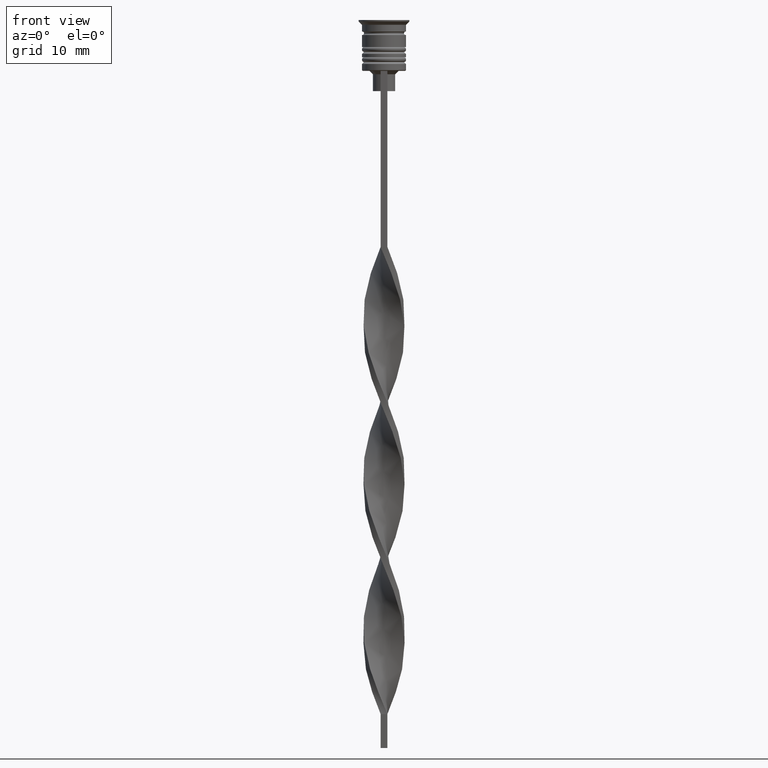
[diagram: clean part render]
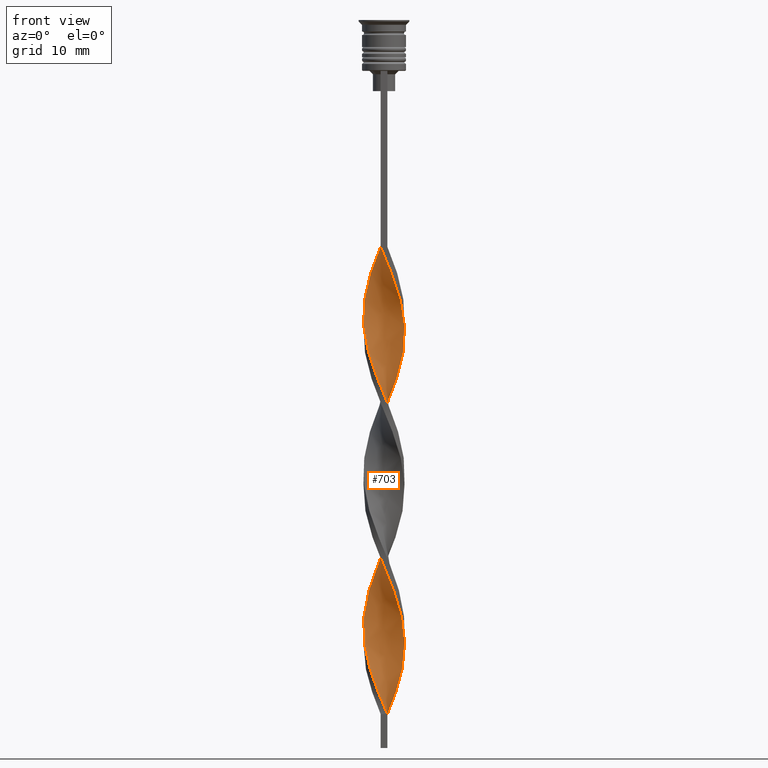
[diagram: same view with one face highlighted and labeled with its STEP entity id]
A machine part, front view. The second image highlights one B-rep face of the part: STEP entity #703.
In plain terms, the highlighted face is a freeform B-spline surface patch.
Its self-contained STEP definition (entity closure, byte-faithful):
#6 = CARTESIAN_POINT ( 'NONE',  ( 0.9514415033047003423, -2.888729662981513790, -37.03846153846154010 ) ) ;
#13 = CARTESIAN_POINT ( 'NONE',  ( -2.982351171577512616, -0.5963065397848993365, -70.65384615384616041 ) ) ;
#31 =( BOUNDED_CURVE ( )  B_SPLINE_CURVE ( 2, ( #1935, #630, #2942, #2707, #865, #1915, #344, #74, #1383, #2208, #2927, #1413, #2173, #594, #1109, #1659, #917, #362, #95, #327, #2979, #2692, #2458, #2995, #2404, #1398, #144, #2155, #3193, #3231, #1128, #3176, #1625, #2442, #110, #125, #1951, #1161, #901, #2723, #1691, #393, #1430, #2223, #3246, #1967, #2285, #1756, #1984, #2300, #978, #2539, #3278, #3307, #2271, #3322, #681, #2806, #2253, #475, #1517, #219, #2553, #2029, #1742, #1729, #3012, #965, #931, #2522, #412, #1195, #171, #205, #998, #2016, #1256, #1241, #951 ),
 .UNSPECIFIED., .F., .T. ) 
 B_SPLINE_CURVE_WITH_KNOTS ( ( 3, 2, 2, 2, 2, 2, 2, 2, 2, 2, 2, 2, 2, 2, 2, 2, 2, 2, 2, 2, 2, 2, 2, 2, 2, 2, 2, 2, 2, 2, 2, 2, 2, 2, 2, 2, 2, 2, 2, 3 ),
 ( 0.000000000000000000, 0.01923076923076923184, 0.03846153846153846367, 0.05769230769230768857, 0.07692307692307692735, 0.09615384615384615918, 0.1153846153846153771, 0.1346153846153846090, 0.1538461538461538547, 0.1730769230769230449, 0.1923076923076923184, 0.2115384615384615363, 0.2307692307692307543, 0.2500000000000000000, 0.2692307692307692180, 0.2884615384615384359, 0.3076923076923077094, 0.3269230769230769273, 0.3461538461538460898, 0.3653846153846153633, 0.3846153846153846367, 0.4038461538461539102, 0.4230769230769230727, 0.4423076923076922906, 0.4615384615384615086, 0.4807692307692307820, 0.5000000000000000000, 0.5192307692307692735, 0.5384615384615384359, 0.5576923076923077094, 0.5769230769230768718, 0.5961538461538461453, 0.6153846153846154188, 0.6346153846153845812, 0.6538461538461538547, 0.6730769230769230171, 0.6923076923076921796, 0.7115384615384615641, 0.7307692307692307265, 0.7500000000000000000 ),
 .UNSPECIFIED. ) 
 CURVE ( )  GEOMETRIC_REPRESENTATION_ITEM ( )  RATIONAL_B_SPLINE_CURVE ( ( 1.000000000000000000, 0.9927088740980539727, 1.000000000000000000, 0.9927088740980539727, 1.000000000000000000, 0.9927088740980539727, 1.000000000000000000, 0.9927088740980539727, 1.000000000000000000, 0.9927088740980539727, 1.000000000000000000, 0.9927088740980539727, 1.000000000000000000, 0.9927088740980539727, 1.000000000000000000, 0.9927088740980539727, 1.000000000000000000, 0.9927088740980539727, 1.000000000000000000, 0.9927088740980539727, 1.000000000000000000, 0.9927088740980539727, 1.000000000000000000, 0.9927088740980539727, 1.000000000000000000, 0.9927088740980539727, 1.000000000000000000, 0.9927088740980539727, 1.000000000000000000, 0.9927088740980539727, 1.000000000000000000, 0.9927088740980539727, 1.000000000000000000, 0.9927088740980539727, 1.000000000000000000, 0.9927088740980539727, 1.000000000000000000, 0.9927088740980539727, 1.000000000000000000, 0.9927088740980539727, 1.000000000000000000, 0.9927088740980539727, 1.000000000000000000, 0.9927088740980539727, 1.000000000000000000, 0.9927088740980539727, 1.000000000000000000, 0.9927088740980539727, 1.000000000000000000, 0.9927088740980539727, 1.000000000000000000, 0.9927088740980539727, 1.000000000000000000, 0.9927088740980539727, 1.000000000000000000, 0.9927088740980539727, 1.000000000000000000, 0.9927088740980539727, 1.000000000000000000, 0.9927088740980539727, 1.000000000000000000, 0.9927088740980539727, 1.000000000000000000, 0.9927088740980539727, 1.000000000000000000, 0.9927088740980539727, 1.000000000000000000, 0.9927088740980539727, 1.000000000000000000, 0.9927088740980539727, 1.000000000000000000, 0.9927088740980539727, 1.000000000000000000, 0.9927088740980539727, 1.000000000000000000, 0.9927088740980539727, 1.000000000000000000, 0.9927088740980539727, 1.000000000000000000 ) ) 
 REPRESENTATION_ITEM ( '' )  );
#35 = CARTESIAN_POINT ( 'NONE',  ( -2.131225204431204112, 2.200966749995606264, -37.92307692307692690 ) ) ;
#50 =( BOUNDED_CURVE ( )  B_SPLINE_CURVE ( 2, ( #2878, #80, #1563, #62, #6, #2070, #547, #2139, #2862, #787, #2663, #837, #2613, #1078, #1061, #2895, #765, #2844, #3129, #581, #264, #1594, #3146, #2087, #531, #1628, #1367, #3111, #1037, #516, #2647, #315, #2409, #2108, #1835, #278, #802, #1114, #1435, #2726, #2212, #868, #2998, #1681, #665, #2749, #3250, #2679, #1715, #1918, #2946, #1387, #1165, #1645, #1416, #3213, #634, #3196, #2161, #1970, #397, #2432, #2966, #854, #349, #614, #648, #1694, #148, #99, #416, #2480, #1182, #2983, #905, #1456, #1664, #3234, #2696 ),
 .UNSPECIFIED., .F., .T. ) 
 B_SPLINE_CURVE_WITH_KNOTS ( ( 3, 2, 2, 2, 2, 2, 2, 2, 2, 2, 2, 2, 2, 2, 2, 2, 2, 2, 2, 2, 2, 2, 2, 2, 2, 2, 2, 2, 2, 2, 2, 2, 2, 2, 2, 2, 2, 2, 2, 3 ),
 ( 0.000000000000000000, 0.01923076923076923184, 0.03846153846153846367, 0.05769230769230768857, 0.07692307692307692735, 0.09615384615384615918, 0.1153846153846153771, 0.1346153846153846090, 0.1538461538461538547, 0.1730769230769230449, 0.1923076923076923184, 0.2115384615384615363, 0.2307692307692307543, 0.2500000000000000000, 0.2692307692307692180, 0.2884615384615384359, 0.3076923076923077094, 0.3269230769230769273, 0.3461538461538460898, 0.3653846153846153633, 0.3846153846153846367, 0.4038461538461539102, 0.4230769230769230727, 0.4423076923076922906, 0.4615384615384615086, 0.4807692307692307820, 0.5000000000000000000, 0.5192307692307692735, 0.5384615384615384359, 0.5576923076923077094, 0.5769230769230768718, 0.5961538461538461453, 0.6153846153846154188, 0.6346153846153845812, 0.6538461538461538547, 0.6730769230769230171, 0.6923076923076921796, 0.7115384615384615641, 0.7307692307692307265, 0.7500000000000000000 ),
 .UNSPECIFIED. ) 
 CURVE ( )  GEOMETRIC_REPRESENTATION_ITEM ( )  RATIONAL_B_SPLINE_CURVE ( ( 1.000000000000000000, 0.9927088740980539727, 1.000000000000000000, 0.9927088740980539727, 1.000000000000000000, 0.9927088740980539727, 1.000000000000000000, 0.9927088740980539727, 1.000000000000000000, 0.9927088740980539727, 1.000000000000000000, 0.9927088740980539727, 1.000000000000000000, 0.9927088740980539727, 1.000000000000000000, 0.9927088740980539727, 1.000000000000000000, 0.9927088740980539727, 1.000000000000000000, 0.9927088740980539727, 1.000000000000000000, 0.9927088740980539727, 1.000000000000000000, 0.9927088740980539727, 1.000000000000000000, 0.9927088740980539727, 1.000000000000000000, 0.9927088740980539727, 1.000000000000000000, 0.9927088740980539727, 1.000000000000000000, 0.9927088740980539727, 1.000000000000000000, 0.9927088740980539727, 1.000000000000000000, 0.9927088740980539727, 1.000000000000000000, 0.9927088740980539727, 1.000000000000000000, 0.9927088740980539727, 1.000000000000000000, 0.9927088740980539727, 1.000000000000000000, 0.9927088740980539727, 1.000000000000000000, 0.9927088740980539727, 1.000000000000000000, 0.9927088740980539727, 1.000000000000000000, 0.9927088740980539727, 1.000000000000000000, 0.9927088740980539727, 1.000000000000000000, 0.9927088740980539727, 1.000000000000000000, 0.9927088740980539727, 1.000000000000000000, 0.9927088740980539727, 1.000000000000000000, 0.9927088740980539727, 1.000000000000000000, 0.9927088740980539727, 1.000000000000000000, 0.9927088740980539727, 1.000000000000000000, 0.9927088740980539727, 1.000000000000000000, 0.9927088740980539727, 1.000000000000000000, 0.9927088740980539727, 1.000000000000000000, 0.9927088740980539727, 1.000000000000000000, 0.9927088740980539727, 1.000000000000000000, 0.9927088740980539727, 1.000000000000000000, 0.9927088740980539727, 1.000000000000000000 ) ) 
 REPRESENTATION_ITEM ( '' )  );
#51 = CARTESIAN_POINT ( 'NONE',  ( 0.9514415033047027848, 2.888729662981513346, -75.96153846153846700 ) ) ;
#58 = DIRECTION ( 'NONE',  ( 0.000000000000000000, 1.000000000000000000, 0.000000000000000000 ) ) ;
#62 = CARTESIAN_POINT ( 'NONE',  ( 0.6006862186325125919, -3.004255577232739949, -36.15384615384615330 ) ) ;
#74 = CARTESIAN_POINT ( 'NONE',  ( -2.596021493184668572, 1.626975080790205697, -39.69230769230769340 ) ) ;
#80 = CARTESIAN_POINT ( 'NONE',  ( -0.1357340503332185033, -3.060710991611130360, -34.38461538461538680 ) ) ;
#95 = CARTESIAN_POINT ( 'NONE',  ( -2.184919224315391428, -2.115686173140295168, -49.42307692307693401 ) ) ;
#99 = CARTESIAN_POINT ( 'NONE',  ( 2.909946448908426131, 0.9584295337030729334, -94.53846153846154721 ) ) ;
#110 = CARTESIAN_POINT ( 'NONE',  ( 2.752983971046547129, -1.292702307246639482, -63.57692307692308731 ) ) ;
#118 = CARTESIAN_POINT ( 'NONE',  ( -0.5000000000000001110, 3.000000000000000000, -79.50000000000001421 ) ) ;
#125 = CARTESIAN_POINT ( 'NONE',  ( 2.909946448908425243, -0.9584295337030751538, -64.46153846153845279 ) ) ;
#126 = ORIENTED_EDGE ( 'NONE', *, *, #1953, .F. ) ;
#133 = CARTESIAN_POINT ( 'NONE',  ( 2.596021493184667683, -1.626975080790206141, -62.69230769230770051 ) ) ;
#144 = CARTESIAN_POINT ( 'NONE',  ( 0.4999999999999997780, -3.000000000000000000, -56.50000000000000711 ) ) ;
#148 = CARTESIAN_POINT ( 'NONE',  ( 2.982351171577512616, 0.5963065397848988924, -93.65384615384617462 ) ) ;
#151 = CARTESIAN_POINT ( 'NONE',  ( -2.184919224315391428, -2.115686173140295168, -95.42307692307693401 ) ) ;
#165 = CARTESIAN_POINT ( 'NONE',  ( -1.302196787976888537, -2.773203748730288076, -52.07692307692308020 ) ) ;
#169 = FACE_OUTER_BOUND ( 'NONE', #3114, .T. ) ;
#171 = CARTESIAN_POINT ( 'NONE',  ( -1.615112600636835705, -2.577093573633700174, -97.19230769230770761 ) ) ;
#198 = CARTESIAN_POINT ( 'NONE',  ( 0.4999999999999997780, -3.000000000000000000, -102.5000000000000142 ) ) ;
#205 = CARTESIAN_POINT ( 'NONE',  ( -1.302196787976888537, -2.773203748730288076, -98.07692307692309441 ) ) ;
#217 = CARTESIAN_POINT ( 'NONE',  ( -1.615112600636834150, 2.577093573633701062, -61.80769230769231370 ) ) ;
#219 = CARTESIAN_POINT ( 'NONE',  ( -2.909946448908426131, 0.9584295337030733775, -87.46153846153849543 ) ) ;
#233 = CARTESIAN_POINT ( 'NONE',  ( 0.9514415033047003423, -2.888729662981513790, -83.03846153846154721 ) ) ;
#239 = VERTEX_POINT ( 'NONE', #3068 ) ;
#252 = CARTESIAN_POINT ( 'NONE',  ( 0.1357340503332191695, 3.060710991611130360, -57.38461538461538680 ) ) ;
#264 = CARTESIAN_POINT ( 'NONE',  ( 2.363623348807936786, 1.913970915392904759, -51.19230769230769340 ) ) ;
#268 = CARTESIAN_POINT ( 'NONE',  ( 2.441810035334000428, -1.850388947743477841, -87.46153846153849543 ) ) ;
#278 = CARTESIAN_POINT ( 'NONE',  ( -2.441810035333999540, 1.850388947743479395, -64.46153846153845279 ) ) ;
#285 = CARTESIAN_POINT ( 'NONE',  ( 2.131225204431204556, 2.200966749995605820, -98.07692307692308020 ) ) ;
#306 = CARTESIAN_POINT ( 'NONE',  ( 1.615112600636836149, 2.577093573633699730, -74.19230769230769340 ) ) ;
#315 = CARTESIAN_POINT ( 'NONE',  ( -1.302196787976887871, 2.773203748730288964, -60.92307692307692690 ) ) ;
#327 = CARTESIAN_POINT ( 'NONE',  ( -1.928028413296782206, -2.380983398537113160, -50.30769230769231370 ) ) ;
#344 = CARTESIAN_POINT ( 'NONE',  ( -2.363623348807935898, 1.913970915392905869, -38.80769230769230660 ) ) ;
#349 = CARTESIAN_POINT ( 'NONE',  ( 2.917858282166500228, -0.8579644778149968509, -90.11538461538462741 ) ) ;
#362 = CARTESIAN_POINT ( 'NONE',  ( -2.441810035334000428, -1.850388947743477619, -48.53846153846154721 ) ) ;
#371 = CARTESIAN_POINT ( 'NONE',  ( -2.184919224315391428, -2.115686173140295168, -49.42307692307693401 ) ) ;
#384 = ORIENTED_EDGE ( 'NONE', *, *, #1192, .T. ) ;
#386 = CARTESIAN_POINT ( 'NONE',  ( 0.2324760841496499864, 3.032483284421934489, -77.73076923076924061 ) ) ;
#393 = CARTESIAN_POINT ( 'NONE',  ( 2.813682533735953673, 1.212256617197149833, -69.76923076923077360 ) ) ;
#397 = CARTESIAN_POINT ( 'NONE',  ( 2.184919224315390984, -2.115686173140296056, -86.57692307692308020 ) ) ;
#401 = CARTESIAN_POINT ( 'NONE',  ( -1.836897528957910586, 2.424006490937745451, -83.03846153846154721 ) ) ;
#412 = CARTESIAN_POINT ( 'NONE',  ( -2.184919224315391428, -2.115686173140295168, -95.42307692307693401 ) ) ;
#416 = CARTESIAN_POINT ( 'NONE',  ( 2.752983971046547573, 1.292702307246638815, -95.42307692307693401 ) ) ;
#417 = ORIENTED_EDGE ( 'NONE', *, *, #2009, .T. ) ;
#419 = CARTESIAN_POINT ( 'NONE',  ( 1.928028413296783983, 2.380983398537111828, -73.30769230769232081 ) ) ;
#446 = VERTEX_POINT ( 'NONE', #1547 ) ;
#475 = CARTESIAN_POINT ( 'NONE',  ( -2.596021493184668572, 1.626975080790205697, -85.69230769230770761 ) ) ;
#486 = CARTESIAN_POINT ( 'NONE',  ( 2.813682533735953228, -1.212256617197151165, -89.23076923076922640 ) ) ;
#503 = CARTESIAN_POINT ( 'NONE',  ( 1.203417901575700499, 2.793167620134376694, -54.73076923076923350 ) ) ;
#516 = CARTESIAN_POINT ( 'NONE',  ( -0.6006862186325113706, 3.004255577232740393, -59.15384615384616041 ) ) ;
#520 = CARTESIAN_POINT ( 'NONE',  ( -1.542569853484617060, 2.647046231879885081, -36.15384615384615330 ) ) ;
#531 = CARTESIAN_POINT ( 'NONE',  ( 1.203417901575700499, 2.793167620134376694, -54.73076923076923350 ) ) ;
#536 = CARTESIAN_POINT ( 'NONE',  ( -2.813682533735953228, 1.212256617197151165, -66.23076923076922640 ) ) ;
#547 = CARTESIAN_POINT ( 'NONE',  ( 1.615112600636834594, -2.577093573633701062, -38.80769230769230660 ) ) ;
#553 = CARTESIAN_POINT ( 'NONE',  ( -2.627746284534977050, -1.531322782470313948, -93.65384615384617462 ) ) ;
#581 = CARTESIAN_POINT ( 'NONE',  ( 2.596021493184669016, 1.626975080790204364, -50.30769230769231370 ) ) ;
#594 = CARTESIAN_POINT ( 'NONE',  ( -3.022034030597048559, -0.5036723384328413156, -45.00000000000000711 ) ) ;
#614 = CARTESIAN_POINT ( 'NONE',  ( 3.022034030597048559, -0.5036723384328417596, -91.00000000000001421 ) ) ;
#621 = CARTESIAN_POINT ( 'NONE',  ( -2.131225204431204112, 2.200966749995606264, -83.92307692307691980 ) ) ;
#630 = CARTESIAN_POINT ( 'NONE',  ( -0.8642659496667818297, 2.939289008388869640, -34.38461538461538680 ) ) ;
#634 = CARTESIAN_POINT ( 'NONE',  ( 0.9514415033047003423, -2.888729662981513790, -83.03846153846154721 ) ) ;
#639 = CARTESIAN_POINT ( 'NONE',  ( 2.813682533735953673, 1.212256617197149833, -69.76923076923077360 ) ) ;
#648 = CARTESIAN_POINT ( 'NONE',  ( 3.038394962421823386, -0.1347443962830584541, -91.88461538461540101 ) ) ;
#654 = CARTESIAN_POINT ( 'NONE',  ( 1.542569853484615949, -2.647046231879885525, -59.15384615384616041 ) ) ;
#659 = CARTESIAN_POINT ( 'NONE',  ( 2.627746284534976606, -1.531322782470315058, -42.34615384615385381 ) ) ;
#665 = CARTESIAN_POINT ( 'NONE',  ( -2.752983971046547573, -1.292702307246638149, -72.42307692307691980 ) ) ;
#670 = CARTESIAN_POINT ( 'NONE',  ( -2.909946448908425687, 0.9584295337030733775, -87.46153846153849543 ) ) ;
#681 = CARTESIAN_POINT ( 'NONE',  ( -1.836897528957910586, 2.424006490937745451, -83.03846153846154721 ) ) ;
#703 = ADVANCED_FACE ( 'NONE', ( #169 ), #1185, .T. ) ;
#710 = VERTEX_POINT ( 'NONE', #1284 ) ;
#736 = B_SPLINE_CURVE_WITH_KNOTS ( 'NONE', 3,
 ( #1127, #1846, #3125, #3156 ),
 .UNSPECIFIED., .F., .F.,
 ( 4, 4 ),
 ( 0.000000000000000000, 1.000000000000000000 ),
 .UNSPECIFIED. ) ;
#740 = CARTESIAN_POINT ( 'NONE',  ( 2.917858282166500228, -0.8579644778149968509, -90.11538461538462741 ) ) ;
#751 = CARTESIAN_POINT ( 'NONE',  ( -1.302196787976888537, -2.773203748730288076, -98.07692307692308020 ) ) ;
#756 = CARTESIAN_POINT ( 'NONE',  ( -1.203417901575701832, -2.793167620134376250, -77.73076923076924061 ) ) ;
#765 = CARTESIAN_POINT ( 'NONE',  ( 2.982351171577512616, 0.5963065397848988924, -47.65384615384616041 ) ) ;
#774 = CARTESIAN_POINT ( 'NONE',  ( -0.1357340503332185311, -3.060710991611130360, -80.38461538461538680 ) ) ;
#787 = CARTESIAN_POINT ( 'NONE',  ( 2.441810035334000428, -1.850388947743478063, -41.46153846153846700 ) ) ;
#792 = CARTESIAN_POINT ( 'NONE',  ( -2.131225204431204556, -2.200966749995605820, -75.07692307692308020 ) ) ;
#802 = CARTESIAN_POINT ( 'NONE',  ( -2.627746284534976162, 1.531322782470315280, -65.34615384615385381 ) ) ;
#808 = CARTESIAN_POINT ( 'NONE',  ( -3.022034030597048559, 0.5036723384328420927, -68.00000000000000000 ) ) ;
#837 = CARTESIAN_POINT ( 'NONE',  ( 2.813682533735953228, -1.212256617197151165, -43.23076923076923350 ) ) ;
#854 = CARTESIAN_POINT ( 'NONE',  ( 2.813682533735953228, -1.212256617197151165, -89.23076923076924061 ) ) ;
#865 = CARTESIAN_POINT ( 'NONE',  ( -1.836897528957910586, 2.424006490937745451, -37.03846153846154010 ) ) ;
#868 = CARTESIAN_POINT ( 'NONE',  ( -3.054755894246599102, -0.2341835458667243242, -69.76923076923077360 ) ) ;
#872 = CARTESIAN_POINT ( 'NONE',  ( -2.441810035334000428, -1.850388947743477397, -48.53846153846154010 ) ) ;
#892 = CARTESIAN_POINT ( 'NONE',  ( -2.909946448908425687, 0.9584295337030733775, -41.46153846153846700 ) ) ;
#901 = CARTESIAN_POINT ( 'NONE',  ( 3.038394962421823831, 0.1347443962830564002, -67.11538461538461320 ) ) ;
#905 = CARTESIAN_POINT ( 'NONE',  ( 1.836897528957911030, 2.424006490937744562, -98.96153846153848122 ) ) ;
#909 = CARTESIAN_POINT ( 'NONE',  ( 2.131225204431203668, -2.200966749995606708, -60.92307692307691980 ) ) ;
#915 = CARTESIAN_POINT ( 'NONE',  ( 1.928028413296781762, -2.380983398537113604, -39.69230769230769340 ) ) ;
#917 = CARTESIAN_POINT ( 'NONE',  ( -2.627746284534977050, -1.531322782470313948, -47.65384615384616041 ) ) ;
#919 = EDGE_CURVE ( 'NONE', #2770, #446, #50, .T. ) ;
#925 = CARTESIAN_POINT ( 'NONE',  ( 3.054755894246598658, -0.2341835458667256287, -66.23076923076922640 ) ) ;
#931 = CARTESIAN_POINT ( 'NONE',  ( -2.627746284534977050, -1.531322782470313948, -93.65384615384617462 ) ) ;
#941 = CARTESIAN_POINT ( 'NONE',  ( -2.982351171577512172, 0.5963065397848998916, -88.34615384615385381 ) ) ;
#951 = CARTESIAN_POINT ( 'NONE',  ( 0.4999999999999997780, -3.000000000000000000, -102.5000000000000142 ) ) ;
#958 = CARTESIAN_POINT ( 'NONE',  ( -1.615112600636835705, -2.577093573633700174, -97.19230769230770761 ) ) ;
#965 = CARTESIAN_POINT ( 'NONE',  ( -2.813682533735953228, -1.212256617197150943, -92.76923076923077360 ) ) ;
#978 = CARTESIAN_POINT ( 'NONE',  ( 0.2324760841496499864, 3.032483284421934489, -77.73076923076924061 ) ) ;
#995 = CARTESIAN_POINT ( 'NONE',  ( -0.9514415033047003423, 2.888729662981513790, -60.03846153846154010 ) ) ;
#998 = CARTESIAN_POINT ( 'NONE',  ( -0.9514415033047011194, -2.888729662981513790, -98.96153846153848122 ) ) ;
#1011 = CARTESIAN_POINT ( 'NONE',  ( -0.2324760841496461561, 3.032483284421934933, -58.26923076923077360 ) ) ;
#1027 = CARTESIAN_POINT ( 'NONE',  ( 2.596021493184669016, 1.626975080790204142, -96.30769230769232081 ) ) ;
#1037 = CARTESIAN_POINT ( 'NONE',  ( -0.2324760841496461561, 3.032483284421934933, -58.26923076923077360 ) ) ;
#1047 = CARTESIAN_POINT ( 'NONE',  ( -2.441810035333999540, 1.850388947743479173, -64.46153846153845279 ) ) ;
#1061 = CARTESIAN_POINT ( 'NONE',  ( 3.038394962421823386, -0.1347443962830584541, -45.88461538461538680 ) ) ;
#1068 = CARTESIAN_POINT ( 'NONE',  ( 1.542569853484618170, 2.647046231879884193, -99.84615384615385381 ) ) ;
#1078 = CARTESIAN_POINT ( 'NONE',  ( 3.022034030597048559, -0.5036723384328417596, -45.00000000000000711 ) ) ;
#1107 = CARTESIAN_POINT ( 'NONE',  ( -0.5000000000000001110, -3.000000000000000000, -33.50000000000000000 ) ) ;
#1109 = CARTESIAN_POINT ( 'NONE',  ( -2.917858282166500672, -0.8579644778149958517, -45.88461538461538680 ) ) ;
#1114 = CARTESIAN_POINT ( 'NONE',  ( -2.813682533735953228, 1.212256617197151165, -66.23076923076922640 ) ) ;
#1127 = CARTESIAN_POINT ( 'NONE',  ( 0.5000000000000004441, 3.000000000000000000, -102.5000000000000142 ) ) ;
#1128 = CARTESIAN_POINT ( 'NONE',  ( 1.836897528957910586, -2.424006490937745451, -60.03846153846154010 ) ) ;
#1137 = CARTESIAN_POINT ( 'NONE',  ( 1.836897528957910586, -2.424006490937745451, -60.03846153846154010 ) ) ;
#1153 = CARTESIAN_POINT ( 'NONE',  ( -2.813682533735953228, -1.212256617197150943, -92.76923076923075939 ) ) ;
#1161 = CARTESIAN_POINT ( 'NONE',  ( 3.054755894246598658, -0.2341835458667256287, -66.23076923076922640 ) ) ;
#1165 = CARTESIAN_POINT ( 'NONE',  ( -0.5000000000000001110, -3.000000000000000000, -79.50000000000001421 ) ) ;
#1170 = CARTESIAN_POINT ( 'NONE',  ( -1.615112600636835705, -2.577093573633700174, -51.19230769230769340 ) ) ;
#1182 = CARTESIAN_POINT ( 'NONE',  ( 2.363623348807936786, 1.913970915392904759, -97.19230769230770761 ) ) ;
#1185 =( BOUNDED_SURFACE ( )  B_SPLINE_SURFACE ( 1, 2, ( 
 ( #2027, #2804, #1478, #3052, #2221, #2759, #2742, #915, #3258, #1965, #659, #1193, #2235, #3009, #1464, #1206, #2504, #2251, #3275, #1999, #3024, #1740, #2772, #1855, #503, #2883, #1254, #252, #1011, #3338, #995, #3320, #217, #1515, #2585, #1047, #2097, #536, #2045, #808, #1840, #2868, #13, #1304, #3134, #2060, #3120, #792, #3099, #2298, #756, #2368, #2832, #774, #1803, #1549, #233, #3069, #2565, #1583, #2816, #268, #3083, #486, #740, #1288, #2551, #2331, #3354, #1788, #2618, #1027, #1530, #285, #2075, #1068, #1567, #1271, #1324 ),
 ( #2318, #1823, #2852, #520, #2601, #35, #2346, #2113, #1721, #892, #3254, #2733, #2972, #1944, #1343, #2231, #1187, #872, #371, #2499, #1170, #165, #2245, #2753, #2181, #1202, #1407, #2451, #1923, #654, #1137, #909, #2717, #133, #2701, #1603, #1459, #925, #2951, #1700, #3003, #639, #1685, #1975, #2466, #419, #306, #2385, #51, #3202, #386, #1421, #118, #3219, #3268, #2217, #401, #621, #3239, #1670, #1960, #670, #941, #2988, #1441, #2485, #1993, #1153, #553, #2638, #151, #2196, #958, #751, #2559, #2278, #1491, #2056, #198 ) ),
 .UNSPECIFIED., .F., .F., .F. ) 
 B_SPLINE_SURFACE_WITH_KNOTS ( ( 2, 2 ),
 ( 3, 2, 2, 2, 2, 2, 2, 2, 2, 2, 2, 2, 2, 2, 2, 2, 2, 2, 2, 2, 2, 2, 2, 2, 2, 2, 2, 2, 2, 2, 2, 2, 2, 2, 2, 2, 2, 2, 2, 3 ),
 ( 0.000000000000000000, 1.000000000000000000 ),
 ( 0.000000000000000000, 0.01923076923076923184, 0.03846153846153846367, 0.05769230769230769551, 0.07692307692307692735, 0.09615384615384615918, 0.1153846153846153910, 0.1346153846153846090, 0.1538461538461538547, 0.1730769230769230727, 0.1923076923076923184, 0.2115384615384615363, 0.2307692307692307820, 0.2500000000000000000, 0.2692307692307692180, 0.2884615384615384359, 0.3076923076923077094, 0.3269230769230769273, 0.3461538461538461453, 0.3653846153846153633, 0.3846153846153846367, 0.4038461538461538547, 0.4230769230769230727, 0.4423076923076922906, 0.4615384615384615641, 0.4807692307692307820, 0.5000000000000000000, 0.5192307692307692735, 0.5384615384615384359, 0.5576923076923077094, 0.5769230769230768718, 0.5961538461538461453, 0.6153846153846154188, 0.6346153846153845812, 0.6538461538461538547, 0.6730769230769231282, 0.6923076923076922906, 0.7115384615384615641, 0.7307692307692307265, 0.7500000000000000000 ),
 .UNSPECIFIED. ) 
 GEOMETRIC_REPRESENTATION_ITEM ( )  RATIONAL_B_SPLINE_SURFACE ( (
 ( 1.000000000000000000, 0.9927088740980539727, 1.000000000000000000, 0.9927088740980539727, 1.000000000000000000, 0.9927088740980539727, 1.000000000000000000, 0.9927088740980539727, 1.000000000000000000, 0.9927088740980539727, 1.000000000000000000, 0.9927088740980539727, 1.000000000000000000, 0.9927088740980539727, 1.000000000000000000, 0.9927088740980539727, 1.000000000000000000, 0.9927088740980539727, 1.000000000000000000, 0.9927088740980539727, 1.000000000000000000, 0.9927088740980539727, 1.000000000000000000, 0.9927088740980539727, 1.000000000000000000, 0.9927088740980539727, 1.000000000000000000, 0.9927088740980539727, 1.000000000000000000, 0.9927088740980539727, 1.000000000000000000, 0.9927088740980539727, 1.000000000000000000, 0.9927088740980539727, 1.000000000000000000, 0.9927088740980539727, 1.000000000000000000, 0.9927088740980539727, 1.000000000000000000, 0.9927088740980539727, 1.000000000000000000, 0.9927088740980539727, 1.000000000000000000, 0.9927088740980539727, 1.000000000000000000, 0.9927088740980539727, 1.000000000000000000, 0.9927088740980539727, 1.000000000000000000, 0.9927088740980539727, 1.000000000000000000, 0.9927088740980539727, 1.000000000000000000, 0.9927088740980539727, 1.000000000000000000, 0.9927088740980539727, 1.000000000000000000, 0.9927088740980539727, 1.000000000000000000, 0.9927088740980539727, 1.000000000000000000, 0.9927088740980539727, 1.000000000000000000, 0.9927088740980539727, 1.000000000000000000, 0.9927088740980539727, 1.000000000000000000, 0.9927088740980539727, 1.000000000000000000, 0.9927088740980539727, 1.000000000000000000, 0.9927088740980539727, 1.000000000000000000, 0.9927088740980539727, 1.000000000000000000, 0.9927088740980539727, 1.000000000000000000, 0.9927088740980539727, 1.000000000000000000),
 ( 1.000000000000000000, 0.9927088740980539727, 1.000000000000000000, 0.9927088740980539727, 1.000000000000000000, 0.9927088740980539727, 1.000000000000000000, 0.9927088740980539727, 1.000000000000000000, 0.9927088740980539727, 1.000000000000000000, 0.9927088740980539727, 1.000000000000000000, 0.9927088740980539727, 1.000000000000000000, 0.9927088740980539727, 1.000000000000000000, 0.9927088740980539727, 1.000000000000000000, 0.9927088740980539727, 1.000000000000000000, 0.9927088740980539727, 1.000000000000000000, 0.9927088740980539727, 1.000000000000000000, 0.9927088740980539727, 1.000000000000000000, 0.9927088740980539727, 1.000000000000000000, 0.9927088740980539727, 1.000000000000000000, 0.9927088740980539727, 1.000000000000000000, 0.9927088740980539727, 1.000000000000000000, 0.9927088740980539727, 1.000000000000000000, 0.9927088740980539727, 1.000000000000000000, 0.9927088740980539727, 1.000000000000000000, 0.9927088740980539727, 1.000000000000000000, 0.9927088740980539727, 1.000000000000000000, 0.9927088740980539727, 1.000000000000000000, 0.9927088740980539727, 1.000000000000000000, 0.9927088740980539727, 1.000000000000000000, 0.9927088740980539727, 1.000000000000000000, 0.9927088740980539727, 1.000000000000000000, 0.9927088740980539727, 1.000000000000000000, 0.9927088740980539727, 1.000000000000000000, 0.9927088740980539727, 1.000000000000000000, 0.9927088740980539727, 1.000000000000000000, 0.9927088740980539727, 1.000000000000000000, 0.9927088740980539727, 1.000000000000000000, 0.9927088740980539727, 1.000000000000000000, 0.9927088740980539727, 1.000000000000000000, 0.9927088740980539727, 1.000000000000000000, 0.9927088740980539727, 1.000000000000000000, 0.9927088740980539727, 1.000000000000000000, 0.9927088740980539727, 1.000000000000000000) ) ) 
 REPRESENTATION_ITEM ( '' )  SURFACE ( )  );
#1187 = CARTESIAN_POINT ( 'NONE',  ( -2.627746284534977050, -1.531322782470313948, -47.65384615384616041 ) ) ;
#1192 = EDGE_CURVE ( 'NONE', #239, #710, #31, .T. ) ;
#1193 = CARTESIAN_POINT ( 'NONE',  ( 2.813682533735953228, -1.212256617197151165, -43.23076923076922640 ) ) ;
#1195 = CARTESIAN_POINT ( 'NONE',  ( -1.928028413296782206, -2.380983398537113160, -96.30769230769232081 ) ) ;
#1202 = CARTESIAN_POINT ( 'NONE',  ( 0.1357340503332171988, -3.060710991611130360, -55.61538461538462741 ) ) ;
#1206 = CARTESIAN_POINT ( 'NONE',  ( 3.054755894246598658, 0.2341835458667255176, -46.76923076923076650 ) ) ;
#1241 = CARTESIAN_POINT ( 'NONE',  ( 0.1357340503332171711, -3.060710991611130360, -101.6153846153846274 ) ) ;
#1254 = CARTESIAN_POINT ( 'NONE',  ( 0.5000000000000004441, 3.000000000000000000, -56.50000000000000711 ) ) ;
#1256 = CARTESIAN_POINT ( 'NONE',  ( -0.2324760841496483210, -3.032483284421934933, -100.7307692307692406 ) ) ;
#1271 = CARTESIAN_POINT ( 'NONE',  ( 0.8642659496667829400, 2.939289008388869640, -101.6153846153846132 ) ) ;
#1284 = CARTESIAN_POINT ( 'NONE',  ( 0.4999999999999997780, -3.000000000000000000, -102.5000000000000142 ) ) ;
#1288 = CARTESIAN_POINT ( 'NONE',  ( 3.022034030597048559, -0.5036723384328417596, -91.00000000000001421 ) ) ;
#1304 = CARTESIAN_POINT ( 'NONE',  ( -2.909946448908426131, -0.9584295337030713791, -71.53846153846154721 ) ) ;
#1324 = CARTESIAN_POINT ( 'NONE',  ( 0.5000000000000004441, 3.000000000000000000, -102.5000000000000142 ) ) ;
#1343 = CARTESIAN_POINT ( 'NONE',  ( -2.917858282166500672, -0.8579644778149958517, -45.88461538461538680 ) ) ;
#1367 = CARTESIAN_POINT ( 'NONE',  ( 0.5000000000000004441, 3.000000000000000000, -56.50000000000000711 ) ) ;
#1383 = CARTESIAN_POINT ( 'NONE',  ( -2.752983971046547129, 1.292702307246639482, -40.57692307692308020 ) ) ;
#1387 = CARTESIAN_POINT ( 'NONE',  ( -0.8642659496667834951, -2.939289008388869195, -78.61538461538461320 ) ) ;
#1398 = CARTESIAN_POINT ( 'NONE',  ( 0.1357340503332171711, -3.060710991611130360, -55.61538461538462741 ) ) ;
#1407 = CARTESIAN_POINT ( 'NONE',  ( 0.4999999999999997780, -3.000000000000000000, -56.50000000000000711 ) ) ;
#1413 = CARTESIAN_POINT ( 'NONE',  ( -3.054755894246598658, 0.2341835458667258507, -43.23076923076923350 ) ) ;
#1416 = CARTESIAN_POINT ( 'NONE',  ( 0.2324760841496471830, -3.032483284421934933, -81.26923076923077360 ) ) ;
#1421 = CARTESIAN_POINT ( 'NONE',  ( -0.1357340503332168102, 3.060710991611130805, -78.61538461538461320 ) ) ;
#1430 = CARTESIAN_POINT ( 'NONE',  ( 2.627746284534977050, 1.531322782470314392, -70.65384615384616041 ) ) ;
#1435 = CARTESIAN_POINT ( 'NONE',  ( -2.917858282166500228, 0.8579644778149978501, -67.11538461538461320 ) ) ;
#1441 = CARTESIAN_POINT ( 'NONE',  ( -3.038394962421823831, -0.1347443962830574271, -90.11538461538462741 ) ) ;
#1456 = CARTESIAN_POINT ( 'NONE',  ( 1.542569853484617948, 2.647046231879884193, -99.84615384615386802 ) ) ;
#1459 = CARTESIAN_POINT ( 'NONE',  ( 2.982351171577512616, -0.5963065397849001137, -65.34615384615385381 ) ) ;
#1464 = CARTESIAN_POINT ( 'NONE',  ( 3.038394962421823386, -0.1347443962830584541, -45.88461538461538680 ) ) ;
#1478 = CARTESIAN_POINT ( 'NONE',  ( 0.2324760841496471830, -3.032483284421934933, -35.26923076923077360 ) ) ;
#1491 = CARTESIAN_POINT ( 'NONE',  ( -0.2324760841496483210, -3.032483284421934933, -100.7307692307692406 ) ) ;
#1515 = CARTESIAN_POINT ( 'NONE',  ( -1.928028413296780652, 2.380983398537114049, -62.69230769230770051 ) ) ;
#1517 = CARTESIAN_POINT ( 'NONE',  ( -2.752983971046547129, 1.292702307246639482, -86.57692307692308020 ) ) ;
#1530 = CARTESIAN_POINT ( 'NONE',  ( 2.363623348807936786, 1.913970915392904759, -97.19230769230770761 ) ) ;
#1547 = CARTESIAN_POINT ( 'NONE',  ( 0.5000000000000004441, 3.000000000000000000, -102.5000000000000142 ) ) ;
#1549 = CARTESIAN_POINT ( 'NONE',  ( 0.6006862186325125919, -3.004255577232739949, -82.15384615384617462 ) ) ;
#1563 = CARTESIAN_POINT ( 'NONE',  ( 0.2324760841496471830, -3.032483284421934933, -35.26923076923077360 ) ) ;
#1567 = CARTESIAN_POINT ( 'NONE',  ( 1.203417901575700499, 2.793167620134376694, -100.7307692307692406 ) ) ;
#1583 = CARTESIAN_POINT ( 'NONE',  ( 1.928028413296781762, -2.380983398537113604, -85.69230769230770761 ) ) ;
#1594 = CARTESIAN_POINT ( 'NONE',  ( 2.131225204431204556, 2.200966749995605820, -52.07692307692308020 ) ) ;
#1603 = CARTESIAN_POINT ( 'NONE',  ( 2.909946448908424799, -0.9584295337030752648, -64.46153846153845279 ) ) ;
#1625 = CARTESIAN_POINT ( 'NONE',  ( 2.363623348807935898, -1.913970915392906313, -61.80769230769231370 ) ) ;
#1628 = CARTESIAN_POINT ( 'NONE',  ( 0.8642659496667830510, 2.939289008388869640, -55.61538461538462741 ) ) ;
#1645 = CARTESIAN_POINT ( 'NONE',  ( -0.1357340503332185033, -3.060710991611130360, -80.38461538461538680 ) ) ;
#1659 = CARTESIAN_POINT ( 'NONE',  ( -2.813682533735953228, -1.212256617197150943, -46.76923076923077360 ) ) ;
#1664 = CARTESIAN_POINT ( 'NONE',  ( 1.203417901575700499, 2.793167620134376694, -100.7307692307692406 ) ) ;
#1670 = CARTESIAN_POINT ( 'NONE',  ( -2.596021493184668572, 1.626975080790205475, -85.69230769230770761 ) ) ;
#1681 = CARTESIAN_POINT ( 'NONE',  ( -2.909946448908426575, -0.9584295337030714901, -71.53846153846154721 ) ) ;
#1685 = CARTESIAN_POINT ( 'NONE',  ( 2.627746284534977050, 1.531322782470314392, -70.65384615384616041 ) ) ;
#1691 = CARTESIAN_POINT ( 'NONE',  ( 2.917858282166500672, 0.8579644778149940754, -68.88461538461538680 ) ) ;
#1694 = CARTESIAN_POINT ( 'NONE',  ( 3.054755894246598658, 0.2341835458667255176, -92.76923076923077360 ) ) ;
#1700 = CARTESIAN_POINT ( 'NONE',  ( 3.022034030597048559, 0.5036723384328409825, -68.00000000000000000 ) ) ;
#1713 = VECTOR ( 'NONE', #58, 1000.000000000000000 ) ;
#1715 = CARTESIAN_POINT ( 'NONE',  ( -1.836897528957912584, -2.424006490937744118, -75.96153846153846700 ) ) ;
#1721 = CARTESIAN_POINT ( 'NONE',  ( -2.752983971046547129, 1.292702307246639482, -40.57692307692308020 ) ) ;
#1729 = CARTESIAN_POINT ( 'NONE',  ( -3.022034030597048559, -0.5036723384328413156, -91.00000000000001421 ) ) ;
#1740 = CARTESIAN_POINT ( 'NONE',  ( 2.131225204431204556, 2.200966749995605820, -52.07692307692308020 ) ) ;
#1742 = CARTESIAN_POINT ( 'NONE',  ( -3.038394962421823831, -0.1347443962830574271, -90.11538461538462741 ) ) ;
#1756 = CARTESIAN_POINT ( 'NONE',  ( 1.302196787976888759, 2.773203748730288076, -75.07692307692308020 ) ) ;
#1788 = CARTESIAN_POINT ( 'NONE',  ( 2.909946448908425687, 0.9584295337030729334, -94.53846153846153300 ) ) ;
#1803 = CARTESIAN_POINT ( 'NONE',  ( 0.2324760841496471830, -3.032483284421934933, -81.26923076923077360 ) ) ;
#1823 = CARTESIAN_POINT ( 'NONE',  ( -0.8642659496667818297, 2.939289008388869640, -34.38461538461538680 ) ) ;
#1835 = CARTESIAN_POINT ( 'NONE',  ( -2.184919224315390984, 2.115686173140296056, -63.57692307692308731 ) ) ;
#1840 = CARTESIAN_POINT ( 'NONE',  ( -3.038394962421823386, 0.1347443962830601472, -68.88461538461538680 ) ) ;
#1846 = CARTESIAN_POINT ( 'NONE',  ( 0.5000000000000002220, 1.000000000000000000, -102.5000000000000142 ) ) ;
#1855 = CARTESIAN_POINT ( 'NONE',  ( 1.542569853484618170, 2.647046231879884193, -53.84615384615384670 ) ) ;
#1915 = CARTESIAN_POINT ( 'NONE',  ( -2.131225204431204112, 2.200966749995606264, -37.92307692307692690 ) ) ;
#1918 = CARTESIAN_POINT ( 'NONE',  ( -1.542569853484618170, -2.647046231879884193, -76.84615384615386802 ) ) ;
#1923 = CARTESIAN_POINT ( 'NONE',  ( 1.203417901575698501, -2.793167620134377582, -58.26923076923077360 ) ) ;
#1935 = CARTESIAN_POINT ( 'NONE',  ( -0.5000000000000001110, 3.000000000000000000, -33.50000000000000000 ) ) ;
#1944 = CARTESIAN_POINT ( 'NONE',  ( -3.022034030597048559, -0.5036723384328413156, -45.00000000000000711 ) ) ;
#1951 = CARTESIAN_POINT ( 'NONE',  ( 2.982351171577512616, -0.5963065397849001137, -65.34615384615385381 ) ) ;
#1953 = EDGE_CURVE ( 'NONE', #446, #710, #736, .T. ) ;
#1960 = CARTESIAN_POINT ( 'NONE',  ( -2.752983971046547129, 1.292702307246639482, -86.57692307692308020 ) ) ;
#1965 = CARTESIAN_POINT ( 'NONE',  ( 2.441810035334000428, -1.850388947743477841, -41.46153846153846700 ) ) ;
#1967 = CARTESIAN_POINT ( 'NONE',  ( 1.928028413296783983, 2.380983398537111828, -73.30769230769232081 ) ) ;
#1970 = CARTESIAN_POINT ( 'NONE',  ( 1.928028413296781762, -2.380983398537114049, -85.69230769230770761 ) ) ;
#1975 = CARTESIAN_POINT ( 'NONE',  ( 2.441810035334001761, 1.850388947743476509, -71.53846153846154721 ) ) ;
#1984 = CARTESIAN_POINT ( 'NONE',  ( 0.9514415033047027848, 2.888729662981513346, -75.96153846153846700 ) ) ;
#1993 = CARTESIAN_POINT ( 'NONE',  ( -2.917858282166500672, -0.8579644778149958517, -91.88461538461540101 ) ) ;
#1999 = CARTESIAN_POINT ( 'NONE',  ( 2.596021493184669016, 1.626975080790204142, -50.30769230769232081 ) ) ;
#2008 = CARTESIAN_POINT ( 'NONE',  ( -0.5000000000000001110, -3.000000000000000000, -33.50000000000000000 ) ) ;
#2009 = EDGE_CURVE ( 'NONE', #2770, #239, #2941, .T. ) ;
#2016 = CARTESIAN_POINT ( 'NONE',  ( -0.6006862186325138131, -3.004255577232739949, -99.84615384615386802 ) ) ;
#2027 = CARTESIAN_POINT ( 'NONE',  ( -0.5000000000000001110, -3.000000000000000000, -33.50000000000000000 ) ) ;
#2029 = CARTESIAN_POINT ( 'NONE',  ( -3.054755894246598658, 0.2341835458667258507, -89.23076923076924061 ) ) ;
#2045 = CARTESIAN_POINT ( 'NONE',  ( -2.917858282166500228, 0.8579644778149978501, -67.11538461538461320 ) ) ;
#2056 = CARTESIAN_POINT ( 'NONE',  ( 0.1357340503332171988, -3.060710991611130360, -101.6153846153846132 ) ) ;
#2060 = CARTESIAN_POINT ( 'NONE',  ( -2.596021493184669904, -1.626975080790202810, -73.30769230769232081 ) ) ;
#2070 = CARTESIAN_POINT ( 'NONE',  ( 1.302196787976888093, -2.773203748730288520, -37.92307692307692690 ) ) ;
#2075 = CARTESIAN_POINT ( 'NONE',  ( 1.836897528957911030, 2.424006490937744562, -98.96153846153848122 ) ) ;
#2087 = CARTESIAN_POINT ( 'NONE',  ( 1.542569853484617948, 2.647046231879884193, -53.84615384615384670 ) ) ;
#2097 = CARTESIAN_POINT ( 'NONE',  ( -2.627746284534976162, 1.531322782470315280, -65.34615384615385381 ) ) ;
#2108 = CARTESIAN_POINT ( 'NONE',  ( -1.928028413296780652, 2.380983398537114493, -62.69230769230770051 ) ) ;
#2113 = CARTESIAN_POINT ( 'NONE',  ( -2.596021493184668572, 1.626975080790205475, -39.69230769230769340 ) ) ;
#2139 = CARTESIAN_POINT ( 'NONE',  ( 1.928028413296781762, -2.380983398537114049, -39.69230769230769340 ) ) ;
#2155 = CARTESIAN_POINT ( 'NONE',  ( 0.8642659496667811636, -2.939289008388869640, -57.38461538461538680 ) ) ;
#2161 = CARTESIAN_POINT ( 'NONE',  ( 1.615112600636834594, -2.577093573633701062, -84.80769230769232081 ) ) ;
#2173 = CARTESIAN_POINT ( 'NONE',  ( -3.038394962421823831, -0.1347443962830574271, -44.11538461538462030 ) ) ;
#2181 = CARTESIAN_POINT ( 'NONE',  ( -0.2324760841496483210, -3.032483284421934933, -54.73076923076923350 ) ) ;
#2196 = CARTESIAN_POINT ( 'NONE',  ( -1.928028413296782206, -2.380983398537113160, -96.30769230769232081 ) ) ;
#2208 = CARTESIAN_POINT ( 'NONE',  ( -2.909946448908426131, 0.9584295337030733775, -41.46153846153846700 ) ) ;
#2212 = CARTESIAN_POINT ( 'NONE',  ( -3.038394962421823386, 0.1347443962830601472, -68.88461538461538680 ) ) ;
#2217 = CARTESIAN_POINT ( 'NONE',  ( -1.542569853484617060, 2.647046231879885081, -82.15384615384617462 ) ) ;
#2221 = CARTESIAN_POINT ( 'NONE',  ( 0.9514415033047003423, -2.888729662981513790, -37.03846153846154010 ) ) ;
#2223 = CARTESIAN_POINT ( 'NONE',  ( 2.441810035334001761, 1.850388947743476509, -71.53846153846154721 ) ) ;
#2231 = CARTESIAN_POINT ( 'NONE',  ( -2.813682533735953228, -1.212256617197150943, -46.76923076923076650 ) ) ;
#2235 = CARTESIAN_POINT ( 'NONE',  ( 2.917858282166500228, -0.8579644778149968509, -44.11538461538462030 ) ) ;
#2245 = CARTESIAN_POINT ( 'NONE',  ( -0.9514415033047011194, -2.888729662981513790, -52.96153846153845990 ) ) ;
#2251 = CARTESIAN_POINT ( 'NONE',  ( 2.909946448908425687, 0.9584295337030729334, -48.53846153846154010 ) ) ;
#2253 = CARTESIAN_POINT ( 'NONE',  ( -2.363623348807935898, 1.913970915392905869, -84.80769230769232081 ) ) ;
#2271 = CARTESIAN_POINT ( 'NONE',  ( -1.203417901575699389, 2.793167620134377582, -81.26923076923077360 ) ) ;
#2278 = CARTESIAN_POINT ( 'NONE',  ( -0.6006862186325138131, -3.004255577232739949, -99.84615384615385381 ) ) ;
#2285 = CARTESIAN_POINT ( 'NONE',  ( 1.615112600636836149, 2.577093573633699730, -74.19230769230769340 ) ) ;
#2298 = CARTESIAN_POINT ( 'NONE',  ( -1.542569853484618392, -2.647046231879884193, -76.84615384615386802 ) ) ;
#2300 = CARTESIAN_POINT ( 'NONE',  ( 0.6006862186325140351, 3.004255577232739949, -76.84615384615386802 ) ) ;
#2318 = CARTESIAN_POINT ( 'NONE',  ( -0.5000000000000001110, 3.000000000000000000, -33.50000000000000000 ) ) ;
#2331 = CARTESIAN_POINT ( 'NONE',  ( 3.054755894246598658, 0.2341835458667255176, -92.76923076923075939 ) ) ;
#2346 = CARTESIAN_POINT ( 'NONE',  ( -2.363623348807935898, 1.913970915392905869, -38.80769230769230660 ) ) ;
#2368 = CARTESIAN_POINT ( 'NONE',  ( -0.8642659496667833841, -2.939289008388869195, -78.61538461538461320 ) ) ;
#2385 = CARTESIAN_POINT ( 'NONE',  ( 1.302196787976888759, 2.773203748730288076, -75.07692307692308020 ) ) ;
#2404 = CARTESIAN_POINT ( 'NONE',  ( -0.2324760841496483210, -3.032483284421934933, -54.73076923076923350 ) ) ;
#2409 = CARTESIAN_POINT ( 'NONE',  ( -1.615112600636834150, 2.577093573633701062, -61.80769230769231370 ) ) ;
#2428 = ORIENTED_EDGE ( 'NONE', *, *, #919, .F. ) ;
#2432 = CARTESIAN_POINT ( 'NONE',  ( 2.441810035334000428, -1.850388947743478063, -87.46153846153849543 ) ) ;
#2442 = CARTESIAN_POINT ( 'NONE',  ( 2.596021493184667683, -1.626975080790206141, -62.69230769230770051 ) ) ;
#2451 = CARTESIAN_POINT ( 'NONE',  ( 0.8642659496667812746, -2.939289008388869640, -57.38461538461538680 ) ) ;
#2458 = CARTESIAN_POINT ( 'NONE',  ( -0.9514415033047011194, -2.888729662981513790, -52.96153846153845990 ) ) ;
#2466 = CARTESIAN_POINT ( 'NONE',  ( 2.184919224315392317, 2.115686173140294724, -72.42307692307691980 ) ) ;
#2480 = CARTESIAN_POINT ( 'NONE',  ( 2.596021493184669016, 1.626975080790204364, -96.30769230769232081 ) ) ;
#2485 = CARTESIAN_POINT ( 'NONE',  ( -3.022034030597048559, -0.5036723384328413156, -91.00000000000001421 ) ) ;
#2499 = CARTESIAN_POINT ( 'NONE',  ( -1.928028413296782206, -2.380983398537113160, -50.30769230769232081 ) ) ;
#2504 = CARTESIAN_POINT ( 'NONE',  ( 2.982351171577512616, 0.5963065397848988924, -47.65384615384616041 ) ) ;
#2522 = CARTESIAN_POINT ( 'NONE',  ( -2.441810035334000428, -1.850388947743477619, -94.53846153846154721 ) ) ;
#2539 = CARTESIAN_POINT ( 'NONE',  ( -0.1357340503332168102, 3.060710991611130805, -78.61538461538461320 ) ) ;
#2551 = CARTESIAN_POINT ( 'NONE',  ( 3.038394962421823386, -0.1347443962830584541, -91.88461538461540101 ) ) ;
#2553 = CARTESIAN_POINT ( 'NONE',  ( -2.982351171577512172, 0.5963065397848998916, -88.34615384615385381 ) ) ;
#2559 = CARTESIAN_POINT ( 'NONE',  ( -0.9514415033047011194, -2.888729662981513790, -98.96153846153848122 ) ) ;
#2565 = CARTESIAN_POINT ( 'NONE',  ( 1.615112600636834594, -2.577093573633701062, -84.80769230769232081 ) ) ;
#2585 = CARTESIAN_POINT ( 'NONE',  ( -2.184919224315390984, 2.115686173140296056, -63.57692307692308731 ) ) ;
#2601 = CARTESIAN_POINT ( 'NONE',  ( -1.836897528957910586, 2.424006490937745451, -37.03846153846154010 ) ) ;
#2613 = CARTESIAN_POINT ( 'NONE',  ( 2.917858282166500228, -0.8579644778149968509, -44.11538461538462030 ) ) ;
#2618 = CARTESIAN_POINT ( 'NONE',  ( 2.752983971046547573, 1.292702307246638815, -95.42307692307693401 ) ) ;
#2638 = CARTESIAN_POINT ( 'NONE',  ( -2.441810035334000428, -1.850388947743477397, -94.53846153846153300 ) ) ;
#2647 = CARTESIAN_POINT ( 'NONE',  ( -0.9514415033047003423, 2.888729662981513790, -60.03846153846154010 ) ) ;
#2663 = CARTESIAN_POINT ( 'NONE',  ( 2.627746284534976606, -1.531322782470315058, -42.34615384615385381 ) ) ;
#2679 = CARTESIAN_POINT ( 'NONE',  ( -2.131225204431204556, -2.200966749995605820, -75.07692307692308020 ) ) ;
#2692 = CARTESIAN_POINT ( 'NONE',  ( -1.302196787976888537, -2.773203748730288076, -52.07692307692308020 ) ) ;
#2696 = CARTESIAN_POINT ( 'NONE',  ( 0.5000000000000004441, 3.000000000000000000, -102.5000000000000142 ) ) ;
#2701 = CARTESIAN_POINT ( 'NONE',  ( 2.752983971046547129, -1.292702307246639482, -63.57692307692308731 ) ) ;
#2707 = CARTESIAN_POINT ( 'NONE',  ( -1.542569853484617060, 2.647046231879885081, -36.15384615384615330 ) ) ;
#2717 = CARTESIAN_POINT ( 'NONE',  ( 2.363623348807935898, -1.913970915392906313, -61.80769230769231370 ) ) ;
#2723 = CARTESIAN_POINT ( 'NONE',  ( 3.022034030597048559, 0.5036723384328409825, -68.00000000000000000 ) ) ;
#2726 = CARTESIAN_POINT ( 'NONE',  ( -3.022034030597048559, 0.5036723384328420927, -68.00000000000000000 ) ) ;
#2733 = CARTESIAN_POINT ( 'NONE',  ( -3.054755894246598658, 0.2341835458667258230, -43.23076923076922640 ) ) ;
#2742 = CARTESIAN_POINT ( 'NONE',  ( 1.615112600636834594, -2.577093573633701062, -38.80769230769230660 ) ) ;
#2749 = CARTESIAN_POINT ( 'NONE',  ( -2.596021493184669904, -1.626975080790202810, -73.30769230769232081 ) ) ;
#2753 = CARTESIAN_POINT ( 'NONE',  ( -0.6006862186325138131, -3.004255577232739949, -53.84615384615384670 ) ) ;
#2759 = CARTESIAN_POINT ( 'NONE',  ( 1.302196787976887871, -2.773203748730288520, -37.92307692307692690 ) ) ;
#2770 = VERTEX_POINT ( 'NONE', #2008 ) ;
#2772 = CARTESIAN_POINT ( 'NONE',  ( 1.836897528957911030, 2.424006490937744562, -52.96153846153845990 ) ) ;
#2804 = CARTESIAN_POINT ( 'NONE',  ( -0.1357340503332185311, -3.060710991611130360, -34.38461538461538680 ) ) ;
#2806 = CARTESIAN_POINT ( 'NONE',  ( -2.131225204431204112, 2.200966749995606264, -83.92307692307693401 ) ) ;
#2816 = CARTESIAN_POINT ( 'NONE',  ( 2.184919224315390984, -2.115686173140296056, -86.57692307692308020 ) ) ;
#2832 = CARTESIAN_POINT ( 'NONE',  ( -0.5000000000000001110, -3.000000000000000000, -79.50000000000001421 ) ) ;
#2844 = CARTESIAN_POINT ( 'NONE',  ( 2.909946448908426131, 0.9584295337030729334, -48.53846153846154721 ) ) ;
#2852 = CARTESIAN_POINT ( 'NONE',  ( -1.203417901575699389, 2.793167620134377582, -35.26923076923077360 ) ) ;
#2862 = CARTESIAN_POINT ( 'NONE',  ( 2.184919224315390984, -2.115686173140296056, -40.57692307692308020 ) ) ;
#2868 = CARTESIAN_POINT ( 'NONE',  ( -3.054755894246599102, -0.2341835458667243519, -69.76923076923077360 ) ) ;
#2878 = CARTESIAN_POINT ( 'NONE',  ( -0.5000000000000001110, -3.000000000000000000, -33.50000000000000000 ) ) ;
#2883 = CARTESIAN_POINT ( 'NONE',  ( 0.8642659496667829400, 2.939289008388869640, -55.61538461538462741 ) ) ;
#2895 = CARTESIAN_POINT ( 'NONE',  ( 3.054755894246598658, 0.2341835458667255176, -46.76923076923077360 ) ) ;
#2927 = CARTESIAN_POINT ( 'NONE',  ( -2.982351171577512172, 0.5963065397848998916, -42.34615384615385381 ) ) ;
#2941 = LINE ( 'NONE', #1107, #1713 ) ;
#2942 = CARTESIAN_POINT ( 'NONE',  ( -1.203417901575699389, 2.793167620134377582, -35.26923076923077360 ) ) ;
#2946 = CARTESIAN_POINT ( 'NONE',  ( -1.203417901575701832, -2.793167620134376250, -77.73076923076924061 ) ) ;
#2951 = CARTESIAN_POINT ( 'NONE',  ( 3.038394962421823831, 0.1347443962830564002, -67.11538461538461320 ) ) ;
#2966 = CARTESIAN_POINT ( 'NONE',  ( 2.627746284534976606, -1.531322782470315058, -88.34615384615385381 ) ) ;
#2972 = CARTESIAN_POINT ( 'NONE',  ( -3.038394962421823831, -0.1347443962830574271, -44.11538461538462030 ) ) ;
#2979 = CARTESIAN_POINT ( 'NONE',  ( -1.615112600636835705, -2.577093573633700174, -51.19230769230769340 ) ) ;
#2983 = CARTESIAN_POINT ( 'NONE',  ( 2.131225204431204556, 2.200966749995605820, -98.07692307692309441 ) ) ;
#2988 = CARTESIAN_POINT ( 'NONE',  ( -3.054755894246598658, 0.2341835458667258230, -89.23076923076922640 ) ) ;
#2995 = CARTESIAN_POINT ( 'NONE',  ( -0.6006862186325138131, -3.004255577232739949, -53.84615384615384670 ) ) ;
#2998 = CARTESIAN_POINT ( 'NONE',  ( -2.982351171577512616, -0.5963065397848993365, -70.65384615384616041 ) ) ;
#3003 = CARTESIAN_POINT ( 'NONE',  ( 2.917858282166500672, 0.8579644778149940754, -68.88461538461538680 ) ) ;
#3009 = CARTESIAN_POINT ( 'NONE',  ( 3.022034030597048559, -0.5036723384328417596, -45.00000000000000711 ) ) ;
#3012 = CARTESIAN_POINT ( 'NONE',  ( -2.917858282166500672, -0.8579644778149958517, -91.88461538461540101 ) ) ;
#3024 = CARTESIAN_POINT ( 'NONE',  ( 2.363623348807936786, 1.913970915392904759, -51.19230769230769340 ) ) ;
#3052 = CARTESIAN_POINT ( 'NONE',  ( 0.6006862186325125919, -3.004255577232739949, -36.15384615384615330 ) ) ;
#3068 = CARTESIAN_POINT ( 'NONE',  ( -0.5000000000000001110, 3.000000000000000000, -33.50000000000000000 ) ) ;
#3069 = CARTESIAN_POINT ( 'NONE',  ( 1.302196787976887871, -2.773203748730288520, -83.92307692307691980 ) ) ;
#3083 = CARTESIAN_POINT ( 'NONE',  ( 2.627746284534976606, -1.531322782470315058, -88.34615384615385381 ) ) ;
#3099 = CARTESIAN_POINT ( 'NONE',  ( -1.836897528957912584, -2.424006490937744118, -75.96153846153846700 ) ) ;
#3111 = CARTESIAN_POINT ( 'NONE',  ( 0.1357340503332191972, 3.060710991611130360, -57.38461538461538680 ) ) ;
#3114 = EDGE_LOOP ( 'NONE', ( #417, #384, #126, #2428 ) ) ;
#3120 = CARTESIAN_POINT ( 'NONE',  ( -2.363623348807936786, -1.913970915392904315, -74.19230769230769340 ) ) ;
#3125 = CARTESIAN_POINT ( 'NONE',  ( 0.5000000000000000000, -1.000000000000000000, -102.5000000000000142 ) ) ;
#3129 = CARTESIAN_POINT ( 'NONE',  ( 2.752983971046547573, 1.292702307246638815, -49.42307692307693401 ) ) ;
#3134 = CARTESIAN_POINT ( 'NONE',  ( -2.752983971046547573, -1.292702307246638149, -72.42307692307691980 ) ) ;
#3146 = CARTESIAN_POINT ( 'NONE',  ( 1.836897528957911030, 2.424006490937744562, -52.96153846153845990 ) ) ;
#3156 = CARTESIAN_POINT ( 'NONE',  ( 0.4999999999999997780, -3.000000000000000000, -102.5000000000000142 ) ) ;
#3176 = CARTESIAN_POINT ( 'NONE',  ( 2.131225204431203668, -2.200966749995606708, -60.92307692307692690 ) ) ;
#3193 = CARTESIAN_POINT ( 'NONE',  ( 1.203417901575698501, -2.793167620134377582, -58.26923076923077360 ) ) ;
#3196 = CARTESIAN_POINT ( 'NONE',  ( 1.302196787976888093, -2.773203748730288520, -83.92307692307693401 ) ) ;
#3202 = CARTESIAN_POINT ( 'NONE',  ( 0.6006862186325140351, 3.004255577232739949, -76.84615384615386802 ) ) ;
#3213 = CARTESIAN_POINT ( 'NONE',  ( 0.6006862186325125919, -3.004255577232739949, -82.15384615384617462 ) ) ;
#3219 = CARTESIAN_POINT ( 'NONE',  ( -0.8642659496667818297, 2.939289008388869640, -80.38461538461538680 ) ) ;
#3231 = CARTESIAN_POINT ( 'NONE',  ( 1.542569853484615949, -2.647046231879885525, -59.15384615384616041 ) ) ;
#3234 = CARTESIAN_POINT ( 'NONE',  ( 0.8642659496667830510, 2.939289008388869640, -101.6153846153846274 ) ) ;
#3239 = CARTESIAN_POINT ( 'NONE',  ( -2.363623348807935898, 1.913970915392905869, -84.80769230769232081 ) ) ;
#3246 = CARTESIAN_POINT ( 'NONE',  ( 2.184919224315392317, 2.115686173140294724, -72.42307692307691980 ) ) ;
#3250 = CARTESIAN_POINT ( 'NONE',  ( -2.363623348807936786, -1.913970915392904315, -74.19230769230769340 ) ) ;
#3254 = CARTESIAN_POINT ( 'NONE',  ( -2.982351171577512172, 0.5963065397848998916, -42.34615384615385381 ) ) ;
#3258 = CARTESIAN_POINT ( 'NONE',  ( 2.184919224315390984, -2.115686173140296056, -40.57692307692308020 ) ) ;
#3268 = CARTESIAN_POINT ( 'NONE',  ( -1.203417901575699389, 2.793167620134377582, -81.26923076923077360 ) ) ;
#3275 = CARTESIAN_POINT ( 'NONE',  ( 2.752983971046547573, 1.292702307246638815, -49.42307692307693401 ) ) ;
#3278 = CARTESIAN_POINT ( 'NONE',  ( -0.5000000000000001110, 3.000000000000000000, -79.50000000000001421 ) ) ;
#3307 = CARTESIAN_POINT ( 'NONE',  ( -0.8642659496667818297, 2.939289008388869640, -80.38461538461538680 ) ) ;
#3320 = CARTESIAN_POINT ( 'NONE',  ( -1.302196787976887649, 2.773203748730288964, -60.92307692307691980 ) ) ;
#3322 = CARTESIAN_POINT ( 'NONE',  ( -1.542569853484617060, 2.647046231879885081, -82.15384615384617462 ) ) ;
#3338 = CARTESIAN_POINT ( 'NONE',  ( -0.6006862186325113706, 3.004255577232740393, -59.15384615384616041 ) ) ;
#3354 = CARTESIAN_POINT ( 'NONE',  ( 2.982351171577512616, 0.5963065397848988924, -93.65384615384617462 ) ) ;